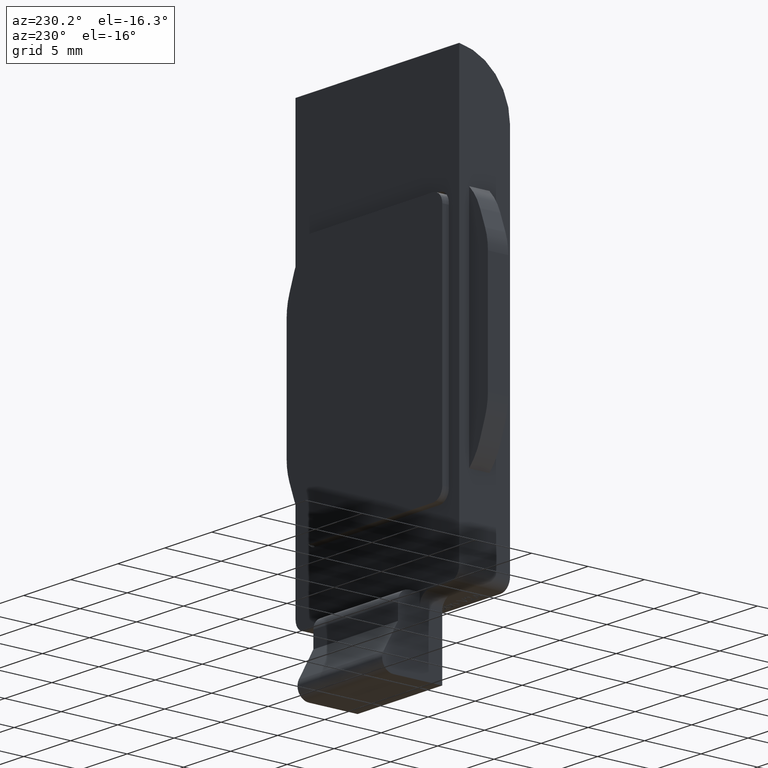
[diagram: clean part render]
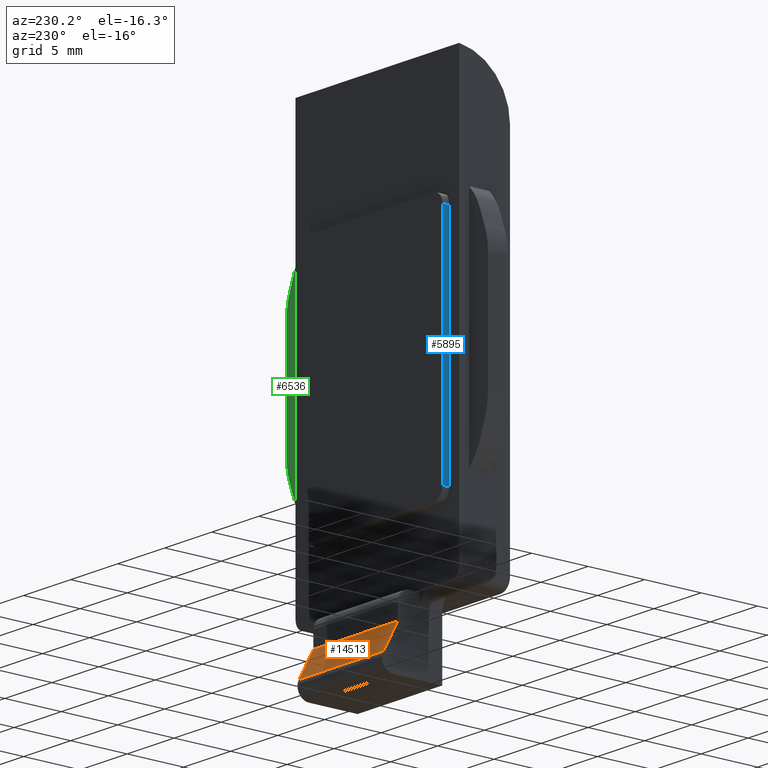
[diagram: same view with three faces highlighted in distinct colors, each labeled with its STEP entity id]
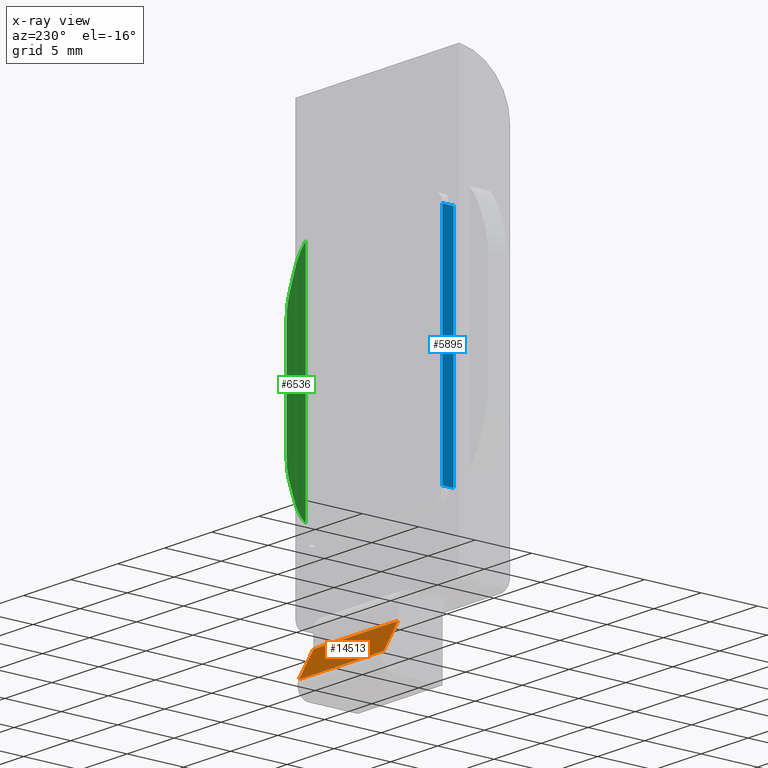
[diagram: x-ray of the same camera — body ghosted, the three highlighted faces saturated]
A machine part, auxiliary view with three faces highlighted in distinct colors.
The next image is the same camera in x-ray (body ghosted, the three faces saturated) — at least one of them is partly hidden behind the body in this view.
Their STEP definitions:

[orange] entity #14513 — the highlighted planar face has unit normal (0, -0.8793, -0.4762).
#54 = CARTESIAN_POINT ( 'NONE',  ( 8.699999999999999289, 6.424999999999999822, -2.399999999999999911 ) ) ;
#427 = CARTESIAN_POINT ( 'NONE',  ( -4.499999999999999112, 6.425000000000000711, -2.400000000000000799 ) ) ;
#568 = VERTEX_POINT ( 'NONE', #2749 ) ;
#1754 = DIRECTION ( 'NONE',  ( -7.762249858807439071E-17, -0.4762095690343896570, 0.8793318181210554307 ) ) ;
#2023 = AXIS2_PLACEMENT_3D ( 'NONE', #54, #11664, #10388 ) ;
#2212 = EDGE_CURVE ( 'NONE', #15021, #568, #16338, .T. ) ;
#2470 = CARTESIAN_POINT ( 'NONE',  ( 8.699999999999999289, 7.710546246380077129, -4.773790430965610732 ) ) ;
#2749 = CARTESIAN_POINT ( 'NONE',  ( -4.499999999999999112, 6.424999999999999822, -2.399999999999999911 ) ) ;
#4287 = EDGE_CURVE ( 'NONE', #11613, #15021, #14519, .T. ) ;
#6150 = VECTOR ( 'NONE', #12581, 1000.000000000000000 ) ;
#7421 = FACE_OUTER_BOUND ( 'NONE', #15720, .T. ) ;
#7632 = LINE ( 'NONE', #427, #9003 ) ;
#8151 = CARTESIAN_POINT ( 'NONE',  ( 4.500000000000000000, 7.710546246380076241, -4.773790430965610732 ) ) ;
#8545 = LINE ( 'NONE', #2470, #6150 ) ;
#8556 = CARTESIAN_POINT ( 'NONE',  ( 8.699999999999999289, 6.424999999999999822, -2.399999999999999911 ) ) ;
#9003 = VECTOR ( 'NONE', #1754, 1000.000000000000000 ) ;
#9485 = DIRECTION ( 'NONE',  ( -7.762249858807436606E-17, -0.4762095690343896570, 0.8793318181210554307 ) ) ;
#9781 = ORIENTED_EDGE ( 'NONE', *, *, #4287, .F. ) ;
#10388 = DIRECTION ( 'NONE',  ( 0.000000000000000000, 0.4762095690343896570, -0.8793318181210554307 ) ) ;
#10698 = ORIENTED_EDGE ( 'NONE', *, *, #2212, .F. ) ;
#11182 = VECTOR ( 'NONE', #16235, 1000.000000000000000 ) ;
#11383 = PLANE ( 'NONE',  #2023 ) ;
#11613 = VERTEX_POINT ( 'NONE', #8151 ) ;
#11664 = DIRECTION ( 'NONE',  ( 0.000000000000000000, -0.8793318181210554307, -0.4762095690343896570 ) ) ;
#11909 = CARTESIAN_POINT ( 'NONE',  ( 4.500000000000000000, 6.424999999999999822, -2.400000000000000355 ) ) ;
#12145 = VECTOR ( 'NONE', #9485, 1000.000000000000000 ) ;
#12449 = EDGE_CURVE ( 'NONE', #11613, #12659, #8545, .T. ) ;
#12581 = DIRECTION ( 'NONE',  ( -1.000000000000000000, 0.000000000000000000, 0.000000000000000000 ) ) ;
#12631 = CARTESIAN_POINT ( 'NONE',  ( 4.500000000000000000, 6.424999999999999822, -2.399999999999999911 ) ) ;
#12659 = VERTEX_POINT ( 'NONE', #12974 ) ;
#12974 = CARTESIAN_POINT ( 'NONE',  ( -4.499999999999999112, 7.710546246380077129, -4.773790430965610732 ) ) ;
#13503 = ORIENTED_EDGE ( 'NONE', *, *, #13628, .T. ) ;
#13628 = EDGE_CURVE ( 'NONE', #12659, #568, #7632, .T. ) ;
#13730 = ORIENTED_EDGE ( 'NONE', *, *, #12449, .T. ) ;
#14513 = ADVANCED_FACE ( 'NONE', ( #7421 ), #11383, .F. ) ;
#14519 = LINE ( 'NONE', #11909, #12145 ) ;
#15021 = VERTEX_POINT ( 'NONE', #12631 ) ;
#15720 = EDGE_LOOP ( 'NONE', ( #13730, #13503, #10698, #9781 ) ) ;
#16235 = DIRECTION ( 'NONE',  ( -1.000000000000000000, -0.000000000000000000, -0.000000000000000000 ) ) ;
#16338 = LINE ( 'NONE', #8556, #11182 ) ;

[blue] entity #5895 — the highlighted planar face has unit normal (1, 0, -0).
#17 = CARTESIAN_POINT ( 'NONE',  ( -7.500000000000000888, 0.000000000000000000, -10.99999999999999467 ) ) ;
#870 = VECTOR ( 'NONE', #15500, 1000.000000000000000 ) ;
#916 = VECTOR ( 'NONE', #9253, 1000.000000000000000 ) ;
#1022 = ORIENTED_EDGE ( 'NONE', *, *, #4943, .T. ) ;
#1141 = EDGE_LOOP ( 'NONE', ( #15427, #4019, #10456, #1022 ) ) ;
#1460 = DIRECTION ( 'NONE',  ( 1.577021341797097560E-16, 0.000000000000000000, 1.000000000000000000 ) ) ;
#1869 = VECTOR ( 'NONE', #1460, 1000.000000000000000 ) ;
#1973 = DIRECTION ( 'NONE',  ( 0.000000000000000000, -1.000000000000000000, 0.000000000000000000 ) ) ;
#2654 = LINE ( 'NONE', #17, #1869 ) ;
#2764 = EDGE_CURVE ( 'NONE', #3508, #8725, #14353, .T. ) ;
#3508 = VERTEX_POINT ( 'NONE', #6844 ) ;
#3678 = AXIS2_PLACEMENT_3D ( 'NONE', #13805, #6242, #8779 ) ;
#3816 = LINE ( 'NONE', #11577, #870 ) ;
#4019 = ORIENTED_EDGE ( 'NONE', *, *, #2764, .T. ) ;
#4091 = EDGE_CURVE ( 'NONE', #5628, #3508, #2654, .T. ) ;
#4943 = EDGE_CURVE ( 'NONE', #5220, #5628, #14488, .T. ) ;
#4971 = PLANE ( 'NONE',  #3678 ) ;
#5088 = EDGE_CURVE ( 'NONE', #5220, #8725, #3816, .T. ) ;
#5220 = VERTEX_POINT ( 'NONE', #14673 ) ;
#5628 = VERTEX_POINT ( 'NONE', #5756 ) ;
#5756 = CARTESIAN_POINT ( 'NONE',  ( -7.500000000000000888, 0.000000000000000000, -9.999999999999994671 ) ) ;
#5895 = ADVANCED_FACE ( 'NONE', ( #10508 ), #4971, .F. ) ;
#6242 = DIRECTION ( 'NONE',  ( 1.000000000000000000, 0.000000000000000000, -1.577021341797097560E-16 ) ) ;
#6844 = CARTESIAN_POINT ( 'NONE',  ( -7.499999999999997335, 0.000000000000000000, 10.00000000000000355 ) ) ;
#8725 = VERTEX_POINT ( 'NONE', #10880 ) ;
#8779 = DIRECTION ( 'NONE',  ( -1.577021341797097560E-16, 0.000000000000000000, -1.000000000000000000 ) ) ;
#8938 = VECTOR ( 'NONE', #1973, 1000.000000000000000 ) ;
#9253 = DIRECTION ( 'NONE',  ( -0.000000000000000000, 1.000000000000000000, -0.000000000000000000 ) ) ;
#10456 = ORIENTED_EDGE ( 'NONE', *, *, #5088, .F. ) ;
#10508 = FACE_OUTER_BOUND ( 'NONE', #1141, .T. ) ;
#10511 = CARTESIAN_POINT ( 'NONE',  ( -7.499999999999997335, 1.000000000000000000, 10.00000000000000355 ) ) ;
#10880 = CARTESIAN_POINT ( 'NONE',  ( -7.499999999999997335, 1.000000000000000000, 10.00000000000000355 ) ) ;
#10978 = CARTESIAN_POINT ( 'NONE',  ( -7.500000000000000888, 1.000000000000000000, -9.999999999999994671 ) ) ;
#11577 = CARTESIAN_POINT ( 'NONE',  ( -7.500000000000000888, 1.000000000000000000, -10.99999999999999467 ) ) ;
#13805 = CARTESIAN_POINT ( 'NONE',  ( -7.500000000000000888, 1.000000000000000000, -10.99999999999999467 ) ) ;
#14353 = LINE ( 'NONE', #10511, #916 ) ;
#14488 = LINE ( 'NONE', #10978, #8938 ) ;
#14673 = CARTESIAN_POINT ( 'NONE',  ( -7.500000000000000888, 1.000000000000000000, -9.999999999999994671 ) ) ;
#15427 = ORIENTED_EDGE ( 'NONE', *, *, #4091, .T. ) ;
#15500 = DIRECTION ( 'NONE',  ( 1.577021341797097560E-16, 0.000000000000000000, 1.000000000000000000 ) ) ;

[green] entity #6536 — the highlighted planar face has unit normal (0, -1, -0).
#132 = DIRECTION ( 'NONE',  ( 0.000000000000000000, -1.301042606982605321E-16, 1.000000000000000000 ) ) ;
#315 = VERTEX_POINT ( 'NONE', #4435 ) ;
#406 = EDGE_CURVE ( 'NONE', #2641, #315, #1729, .T. ) ;
#450 = CARTESIAN_POINT ( 'NONE',  ( 8.699999999999999289, 3.625000000000000444, 8.000000000000000000 ) ) ;
#562 = DIRECTION ( 'NONE',  ( 1.734723475976807094E-15, 8.673617379884035472E-17, -1.000000000000000000 ) ) ;
#570 = VECTOR ( 'NONE', #132, 1000.000000000000000 ) ;
#1035 = EDGE_CURVE ( 'NONE', #315, #3348, #12795, .T. ) ;
#1071 = VECTOR ( 'NONE', #1295, 1000.000000000000000 ) ;
#1113 = CARTESIAN_POINT ( 'NONE',  ( 10.69999999999999929, 3.624999999999998668, 22.99714896727577695 ) ) ;
#1295 = DIRECTION ( 'NONE',  ( 0.000000000000000000, -1.301042606982605321E-16, 1.000000000000000000 ) ) ;
#1507 = DIRECTION ( 'NONE',  ( -5.377642775528101204E-15, 1.734723475976806848E-16, -1.000000000000000000 ) ) ;
#1729 = LINE ( 'NONE', #16136, #14586 ) ;
#2451 = EDGE_LOOP ( 'NONE', ( #12315, #10773, #3433, #14178, #3162, #8941, #5828, #3517 ) ) ;
#2641 = VERTEX_POINT ( 'NONE', #15117 ) ;
#2955 = PLANE ( 'NONE',  #16384 ) ;
#3162 = ORIENTED_EDGE ( 'NONE', *, *, #6183, .T. ) ;
#3233 = DIRECTION ( 'NONE',  ( 0.000000000000000000, -1.000000000000000000, -1.301042606982605321E-16 ) ) ;
#3295 = DIRECTION ( 'NONE',  ( 0.000000000000000000, 1.301042606982605321E-16, -1.000000000000000000 ) ) ;
#3348 = VERTEX_POINT ( 'NONE', #450 ) ;
#3433 = ORIENTED_EDGE ( 'NONE', *, *, #4649, .T. ) ;
#3517 = ORIENTED_EDGE ( 'NONE', *, *, #4850, .T. ) ;
#3669 = CARTESIAN_POINT ( 'NONE',  ( 9.865246063324173420, 3.624999999999998224, 26.17225146263577429 ) ) ;
#4420 = DIRECTION ( 'NONE',  ( 0.3420201433256713219, 1.222580137109613705E-16, -0.9396926207859073177 ) ) ;
#4423 = DIRECTION ( 'NONE',  ( -0.000000000000000000, 1.000000000000000000, 1.301042606982605321E-16 ) ) ;
#4435 = CARTESIAN_POINT ( 'NONE',  ( 9.865246063324162762, 3.625000000000000444, 9.827748537364218606 ) ) ;
#4640 = CARTESIAN_POINT ( 'NONE',  ( 10.69999999999999929, 3.624999999999998668, 23.87878387081810772 ) ) ;
#4649 = EDGE_CURVE ( 'NONE', #3348, #7402, #6390, .T. ) ;
#4807 = VERTEX_POINT ( 'NONE', #11870 ) ;
#4850 = EDGE_CURVE ( 'NONE', #16006, #2641, #5806, .T. ) ;
#5504 = LINE ( 'NONE', #11172, #570 ) ;
#5733 = CARTESIAN_POINT ( 'NONE',  ( 5.699999999999999289, 3.624999999999999556, 13.00285103272426213 ) ) ;
#5806 = CIRCLE ( 'NONE', #11074, 4.999999999999999112 ) ;
#5828 = ORIENTED_EDGE ( 'NONE', *, *, #11699, .F. ) ;
#5946 = CIRCLE ( 'NONE', #6018, 5.000000000000000888 ) ;
#6018 = AXIS2_PLACEMENT_3D ( 'NONE', #12834, #6524, #1507 ) ;
#6183 = EDGE_CURVE ( 'NONE', #11169, #4807, #15268, .T. ) ;
#6299 = EDGE_CURVE ( 'NONE', #7402, #11169, #11330, .T. ) ;
#6390 = LINE ( 'NONE', #8849, #1071 ) ;
#6522 = AXIS2_PLACEMENT_3D ( 'NONE', #12460, #13999, #15017 ) ;
#6524 = DIRECTION ( 'NONE',  ( -0.000000000000000000, 1.000000000000000000, 1.301042606982605321E-16 ) ) ;
#6536 = ADVANCED_FACE ( 'NONE', ( #14088 ), #2955, .F. ) ;
#7402 = VERTEX_POINT ( 'NONE', #15752 ) ;
#8113 = CARTESIAN_POINT ( 'NONE',  ( 5.166782959394620178, 3.625000000000000000, 11.53784925399256700 ) ) ;
#8849 = CARTESIAN_POINT ( 'NONE',  ( 8.699999999999999289, 3.625000000000000444, 8.000000000000000000 ) ) ;
#8941 = ORIENTED_EDGE ( 'NONE', *, *, #9131, .T. ) ;
#9131 = EDGE_CURVE ( 'NONE', #4807, #13462, #5946, .T. ) ;
#10773 = ORIENTED_EDGE ( 'NONE', *, *, #1035, .T. ) ;
#10956 = AXIS2_PLACEMENT_3D ( 'NONE', #8113, #4423, #562 ) ;
#11074 = AXIS2_PLACEMENT_3D ( 'NONE', #5733, #12253, #13301 ) ;
#11169 = VERTEX_POINT ( 'NONE', #3669 ) ;
#11172 = CARTESIAN_POINT ( 'NONE',  ( 10.69999999999999929, 3.625000000000000444, 8.000000000000000000 ) ) ;
#11330 = CIRCLE ( 'NONE', #6522, 5.000000000000000888 ) ;
#11699 = EDGE_CURVE ( 'NONE', #16006, #13462, #5504, .T. ) ;
#11870 = CARTESIAN_POINT ( 'NONE',  ( 10.39846310392953654, 3.624999999999998668, 24.70724968390413068 ) ) ;
#12169 = CARTESIAN_POINT ( 'NONE',  ( 10.69999999999999929, 3.624999999999999556, 13.00285103272426213 ) ) ;
#12253 = DIRECTION ( 'NONE',  ( -0.000000000000000000, 1.000000000000000000, 1.301042606982605321E-16 ) ) ;
#12315 = ORIENTED_EDGE ( 'NONE', *, *, #406, .T. ) ;
#12460 = CARTESIAN_POINT ( 'NONE',  ( 5.166782959394637054, 3.624999999999998668, 24.46215074600741701 ) ) ;
#12474 = DIRECTION ( 'NONE',  ( -0.3420201433256697676, 1.222580137109614445E-16, -0.9396926207859080948 ) ) ;
#12795 = CIRCLE ( 'NONE', #10956, 5.000000000000000000 ) ;
#12834 = CARTESIAN_POINT ( 'NONE',  ( 5.699999999999999289, 3.624999999999998668, 22.99714896727577695 ) ) ;
#13112 = VECTOR ( 'NONE', #4420, 1000.000000000000114 ) ;
#13301 = DIRECTION ( 'NONE',  ( -2.602085213965211036E-15, 1.734723475976807341E-16, -1.000000000000000000 ) ) ;
#13462 = VERTEX_POINT ( 'NONE', #1113 ) ;
#13999 = DIRECTION ( 'NONE',  ( -0.000000000000000000, 1.000000000000000000, 1.301042606982605321E-16 ) ) ;
#14088 = FACE_OUTER_BOUND ( 'NONE', #2451, .T. ) ;
#14178 = ORIENTED_EDGE ( 'NONE', *, *, #6299, .T. ) ;
#14586 = VECTOR ( 'NONE', #12474, 999.9999999999998863 ) ;
#14670 = CARTESIAN_POINT ( 'NONE',  ( 10.69999999999999929, 3.625000000000000444, 8.000000000000000000 ) ) ;
#15017 = DIRECTION ( 'NONE',  ( 1.734723475976806700E-15, 8.673617379884034239E-17, -1.000000000000000000 ) ) ;
#15117 = CARTESIAN_POINT ( 'NONE',  ( 10.39846310392954010, 3.625000000000000000, 11.29275031609591196 ) ) ;
#15268 = LINE ( 'NONE', #4640, #13112 ) ;
#15752 = CARTESIAN_POINT ( 'NONE',  ( 8.699999999999999289, 3.624999999999998224, 28.00000000000000000 ) ) ;
#16006 = VERTEX_POINT ( 'NONE', #12169 ) ;
#16136 = CARTESIAN_POINT ( 'NONE',  ( 10.69999999999999929, 3.625000000000000000, 12.12121612918193314 ) ) ;
#16384 = AXIS2_PLACEMENT_3D ( 'NONE', #14670, #3233, #3295 ) ;